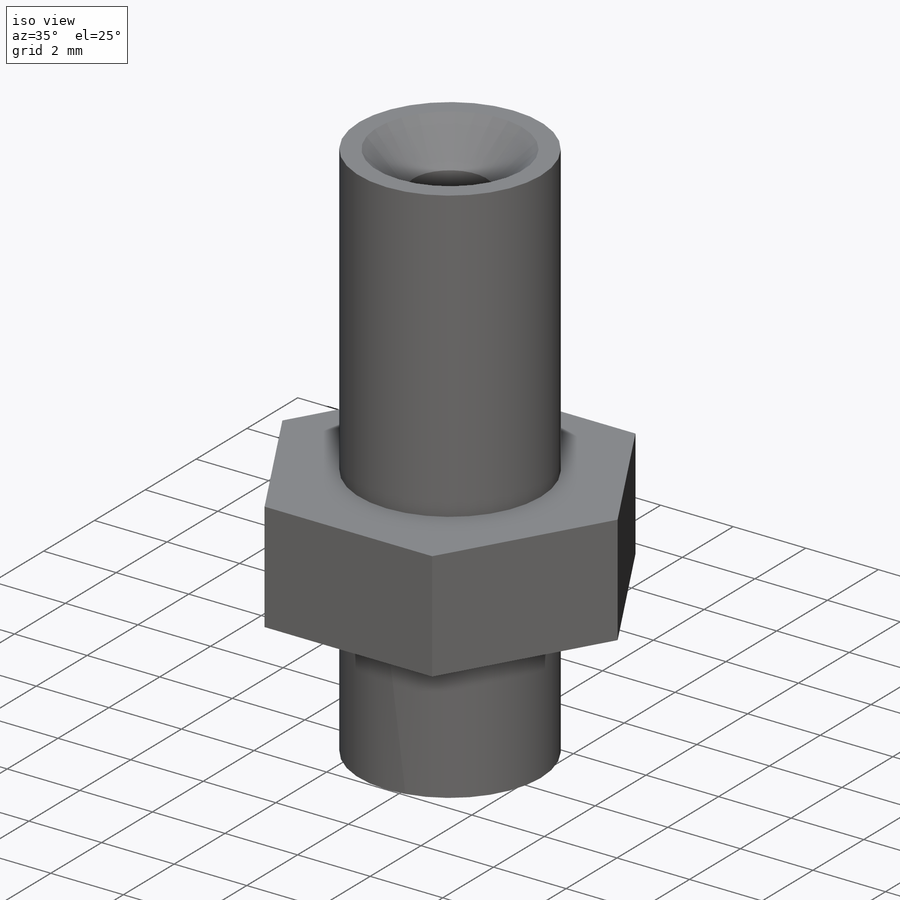
[diagram: iso view]
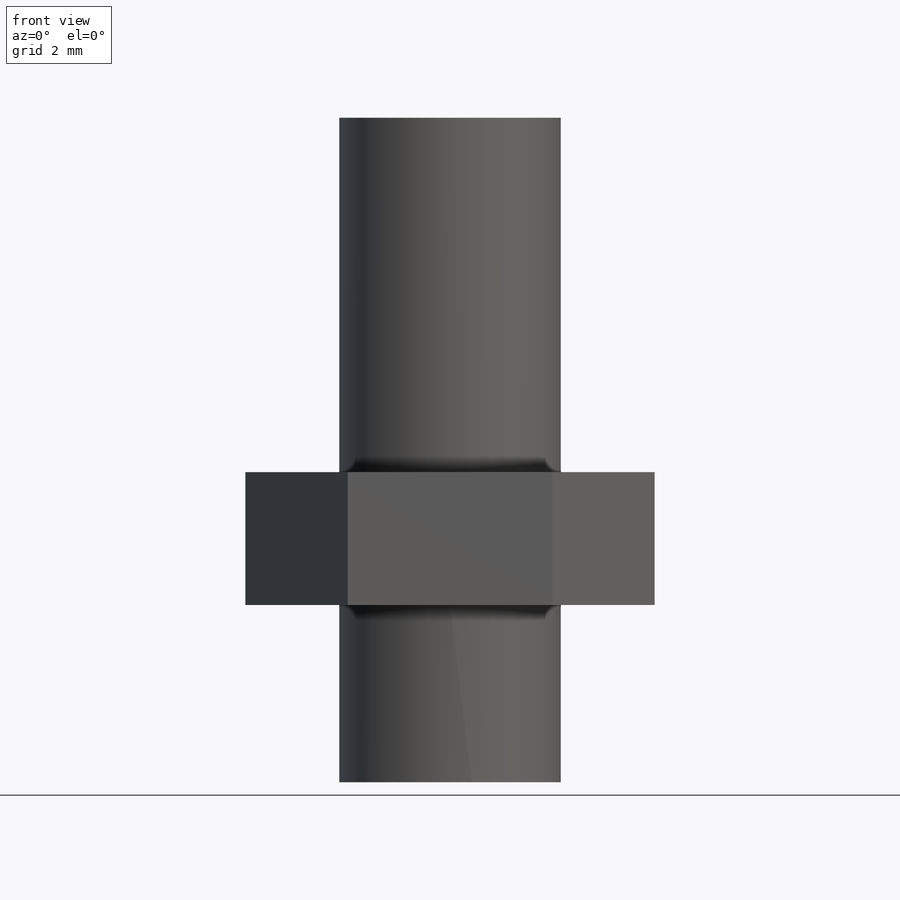
[diagram: front view]
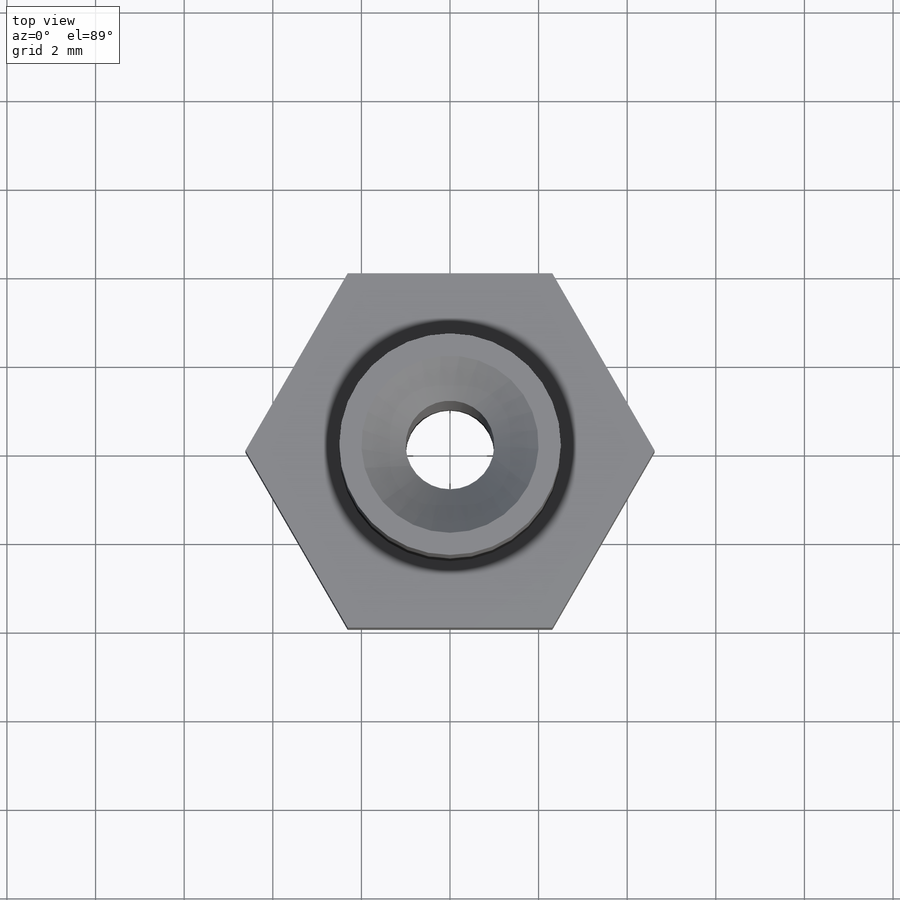
[diagram: top view]
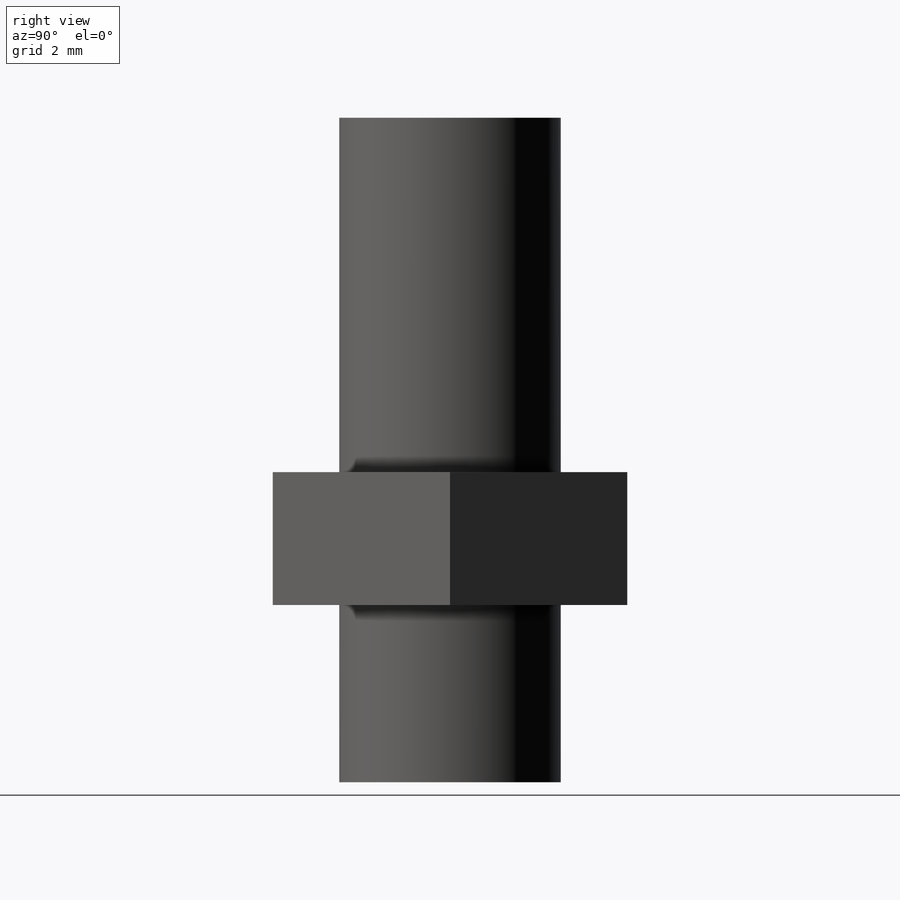
[diagram: right view]
SOLIDWORKS PART (.sldprt)
format: sldprt  version: not decoded by parser v0  size: 175,104 bytes
history: native  units: mm
features: sketch x4, extrude x3, thread x2, material x1, cut_extrude x1, chamfer x1 (+13 scaffold rows collapsed)
feature tree (25):
  scaffold x13  (default folders/planes/origin — collapsed)
  material  "Material <not specified>"
  sketch  "Sketch1"  dims[D1=8.0mm]
  extrude  "Boss-Extrude1"  Depth=3mm
  sketch  "Sketch4"  dims[D1=5.0mm]
  extrude  "Boss-Extrude3"  [1 undecoded]
  thread  "Cosmetic Thread3"  Diameter=4.11mm  [1 undecoded]
  sketch  "Sketch2"  dims[D1=5.0mm]
  extrude  "Boss-Extrude2"  [1 undecoded]
  thread  "Cosmetic Thread2"  Diameter=4.11mm  [1 undecoded]
  sketch  "Sketch3"  dims[D1=2.0mm]
  cut_extrude  "Cut-Extrude1"  [1 undecoded]
  chamfer  "Chamfer2"  Distance=1mm Angle=45deg
decode coverage: 8 of 11 modeling features carry decoded parameters
note: 5 parameter values undecoded
summary: no parameter record found for 3 features
note: suppression state not decoded; provenance and decode notes live in map.json
